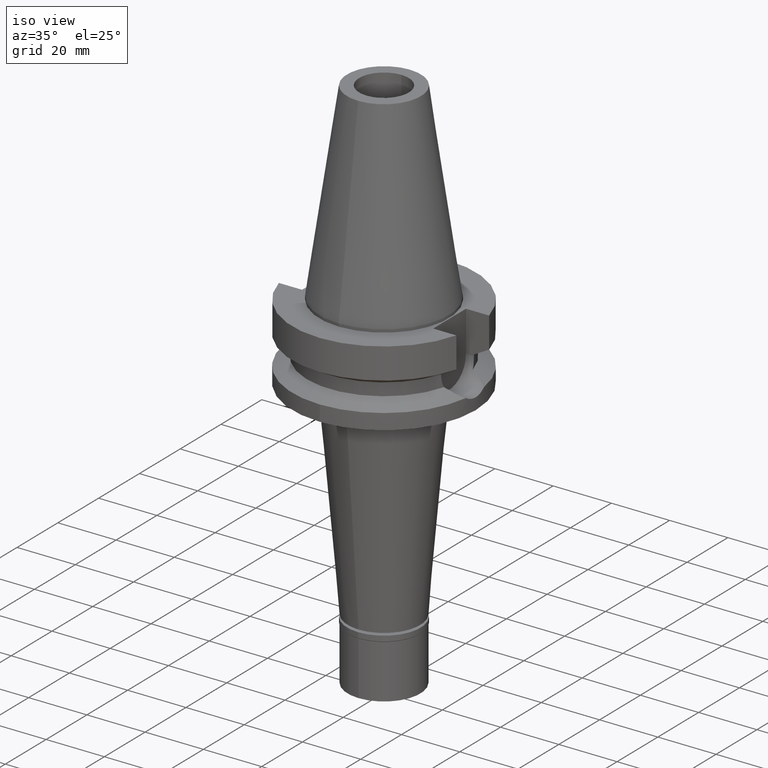
[diagram: clean part render]
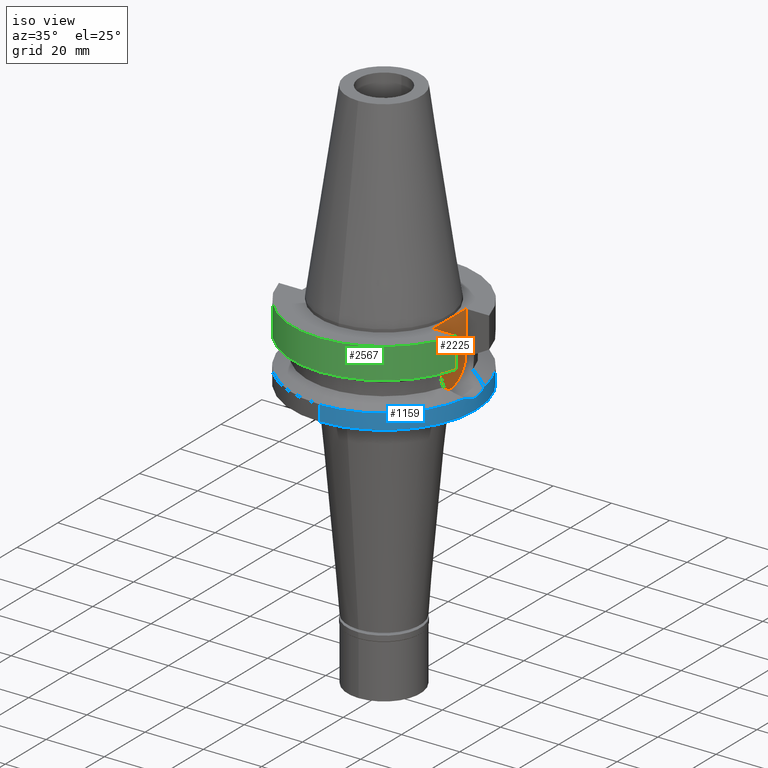
[diagram: same view with three faces highlighted in distinct colors, each labeled with its STEP entity id]
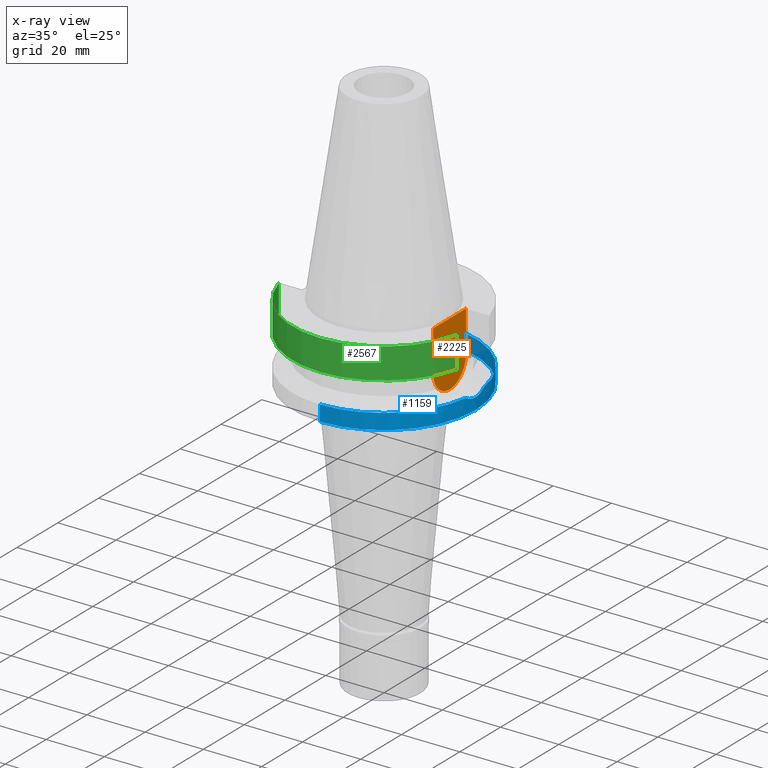
[diagram: x-ray of the same camera — body ghosted, the three highlighted faces saturated]
A machine part, iso view with three faces highlighted in distinct colors.
The next image is the same camera in x-ray (body ghosted, the three faces saturated) — at least one of them is partly hidden behind the body in this view.
Their STEP definitions:

[orange] entity #2225 — the highlighted planar face has unit normal (1, 0, 0).
#107 = LINE ( 'NONE', #351, #630 ) ;
#141 = CARTESIAN_POINT ( 'NONE',  ( 22.50000000000000000, 8.050000000000000711, -1.000000000000000000 ) ) ;
#238 = CARTESIAN_POINT ( 'NONE',  ( 22.50000000000000000, -8.050000000000000711, -1.000000000000000000 ) ) ;
#351 = CARTESIAN_POINT ( 'NONE',  ( 22.50000000000000000, -8.050000000000000711, -14.94999999999999929 ) ) ;
#408 = ORIENTED_EDGE ( 'NONE', *, *, #2429, .F. ) ;
#436 = EDGE_CURVE ( 'NONE', #1615, #731, #2994, .T. ) ;
#503 = FACE_OUTER_BOUND ( 'NONE', #2681, .T. ) ;
#577 = DIRECTION ( 'NONE',  ( 0.0000000000000000000, -1.000000000000000000, 0.0000000000000000000 ) ) ;
#630 = VECTOR ( 'NONE', #1558, 1000.000000000000000 ) ;
#731 = VERTEX_POINT ( 'NONE', #238 ) ;
#871 = CARTESIAN_POINT ( 'NONE',  ( 22.50000000000000000, 8.050000000000000711, -1.000000000000000000 ) ) ;
#1088 = DIRECTION ( 'NONE',  ( 0.0000000000000000000, 0.0000000000000000000, -1.000000000000000000 ) ) ;
#1130 = ORIENTED_EDGE ( 'NONE', *, *, #2523, .F. ) ;
#1133 = CIRCLE ( 'NONE', #2919, 8.050000000000000711 ) ;
#1238 = DIRECTION ( 'NONE',  ( 0.0000000000000000000, 1.000000000000000000, 0.0000000000000000000 ) ) ;
#1334 = CARTESIAN_POINT ( 'NONE',  ( 22.50000000000000000, 8.050000000000000711, -14.94999999999999929 ) ) ;
#1484 = VERTEX_POINT ( 'NONE', #1334 ) ;
#1491 = PLANE ( 'NONE',  #3074 ) ;
#1558 = DIRECTION ( 'NONE',  ( 0.0000000000000000000, 0.0000000000000000000, 1.000000000000000000 ) ) ;
#1615 = VERTEX_POINT ( 'NONE', #141 ) ;
#1713 = CARTESIAN_POINT ( 'NONE',  ( 22.50000000000000000, 0.0000000000000000000, 0.0000000000000000000 ) ) ;
#1827 = CARTESIAN_POINT ( 'NONE',  ( 22.50000000000000000, 8.050000000000000711, -1.000000000000000000 ) ) ;
#2114 = VERTEX_POINT ( 'NONE', #3125 ) ;
#2225 = ADVANCED_FACE ( 'NONE', ( #503 ), #1491, .T. ) ;
#2304 = LINE ( 'NONE', #1827, #2347 ) ;
#2347 = VECTOR ( 'NONE', #1088, 1000.000000000000000 ) ;
#2429 = EDGE_CURVE ( 'NONE', #1484, #2114, #1133, .T. ) ;
#2470 = EDGE_CURVE ( 'NONE', #2114, #731, #107, .T. ) ;
#2471 = DIRECTION ( 'NONE',  ( 0.0000000000000000000, 0.0000000000000000000, -1.000000000000000000 ) ) ;
#2486 = DIRECTION ( 'NONE',  ( 1.000000000000000000, 0.0000000000000000000, 0.0000000000000000000 ) ) ;
#2523 = EDGE_CURVE ( 'NONE', #1615, #1484, #2304, .T. ) ;
#2681 = EDGE_LOOP ( 'NONE', ( #2991, #408, #1130, #2839 ) ) ;
#2696 = CARTESIAN_POINT ( 'NONE',  ( 22.50000000000000000, 0.0000000000000000000, -14.94999999999999929 ) ) ;
#2717 = DIRECTION ( 'NONE',  ( -1.000000000000000000, 0.0000000000000000000, 0.0000000000000000000 ) ) ;
#2839 = ORIENTED_EDGE ( 'NONE', *, *, #436, .T. ) ;
#2871 = VECTOR ( 'NONE', #577, 1000.000000000000000 ) ;
#2919 = AXIS2_PLACEMENT_3D ( 'NONE', #2696, #2717, #2471 ) ;
#2991 = ORIENTED_EDGE ( 'NONE', *, *, #2470, .F. ) ;
#2994 = LINE ( 'NONE', #871, #2871 ) ;
#3074 = AXIS2_PLACEMENT_3D ( 'NONE', #1713, #2486, #1238 ) ;
#3125 = CARTESIAN_POINT ( 'NONE',  ( 22.50000000000000000, -8.050000000000000711, -14.94999999999999929 ) ) ;

[blue] entity #1159 — the highlighted cylindrical surface (partial cylindrical patch) has radius 31.5 mm, axis along (0, 0, -1).
#2 = CARTESIAN_POINT ( 'NONE',  ( 31.43707934141286131, 1.991785373851441276, -22.75083979994500183 ) ) ;
#24 = VECTOR ( 'NONE', #772, 1000.000000000000000 ) ;
#28 = VERTEX_POINT ( 'NONE', #725 ) ;
#100 = DIRECTION ( 'NONE',  ( 0.0000000000000000000, 0.0000000000000000000, -1.000000000000000000 ) ) ;
#192 = CARTESIAN_POINT ( 'NONE',  ( 31.41250465254752555, -2.344685119766516834, -22.65098129005198757 ) ) ;
#212 = CARTESIAN_POINT ( 'NONE',  ( 31.41961539192765329, 2.247536052731850198, -22.67995511559495014 ) ) ;
#224 = CARTESIAN_POINT ( 'NONE',  ( 31.40205153632066271, -2.481143929224092659, -22.60832449609318218 ) ) ;
#249 = CARTESIAN_POINT ( 'NONE',  ( 31.49278356123978639, 0.7711873036931051750, -22.97267690001503126 ) ) ;
#333 = EDGE_CURVE ( 'NONE', #28, #2323, #537, .T. ) ;
#343 = CARTESIAN_POINT ( 'NONE',  ( 0.0000000000000000000, 0.0000000000000000000, -21.63449434733000132 ) ) ;
#391 = CARTESIAN_POINT ( 'NONE',  ( 31.33671814113539611, -3.204274407590857354, -22.33747821317917825 ) ) ;
#416 = DIRECTION ( 'NONE',  ( 0.9898094849552905306, -0.1423979757318985240, 0.0000000000000000000 ) ) ;
#452 = CARTESIAN_POINT ( 'NONE',  ( 31.47113333814916558, 1.356640495981120020, -22.88731189947309730 ) ) ;
#462 = CARTESIAN_POINT ( 'NONE',  ( 31.41023747458205406, -2.374835805099700714, -22.64173436498732883 ) ) ;
#465 = CARTESIAN_POINT ( 'NONE',  ( 31.41697254242930271, 2.284015593820755363, -22.66919255135217526 ) ) ;
#535 = CIRCLE ( 'NONE', #2969, 31.50000000000001421 ) ;
#537 = CIRCLE ( 'NONE', #2815, 31.50000000000000000 ) ;
#559 = EDGE_CURVE ( 'NONE', #1748, #2316, #1329, .T. ) ;
#594 = CARTESIAN_POINT ( 'NONE',  ( 31.23205437646138805, -4.116746326772162234, -21.88196564631180152 ) ) ;
#725 = CARTESIAN_POINT ( 'NONE',  ( 0.0000000000000000000, 31.50000000000000000, -21.63449434733000132 ) ) ;
#729 = CARTESIAN_POINT ( 'NONE',  ( 31.17899877608999759, 4.485536235554000051, -21.63449434733000132 ) ) ;
#750 = CARTESIAN_POINT ( 'NONE',  ( 0.0000000000000000000, -31.50000000000000000, -27.00000000000000000 ) ) ;
#772 = DIRECTION ( 'NONE',  ( 0.0000000000000000000, 1.099151708819000049E-13, -1.000000000000000000 ) ) ;
#797 = B_SPLINE_CURVE_WITH_KNOTS ( 'NONE', 3,
 ( #1796, #594, #2554, #391, #3130, #2116, #946, #224, #2131, #462, #1405, #192, #1420, #2361, #1873 ),
 .UNSPECIFIED., .F., .F.,
 ( 4, 2, 2, 1, 1, 1, 2, 2, 4 ),
 ( 0.0000000000000000000, 0.2499999999999968914, 0.3749999999999954481, 0.4374999999999949485, 0.4687499999999946709, 0.4843749999999942824, 0.4921874999999941713, 0.4999999999999940048, 1.000000000000000000 ),
 .UNSPECIFIED. ) ;
#884 = ORIENTED_EDGE ( 'NONE', *, *, #559, .T. ) ;
#934 = CARTESIAN_POINT ( 'NONE',  ( 0.0000000000000000000, 31.50000000000000000, -27.00000000000000000 ) ) ;
#946 = CARTESIAN_POINT ( 'NONE',  ( 31.38993145521997619, -2.631335983103371579, -22.55874663190619955 ) ) ;
#952 = DIRECTION ( 'NONE',  ( 0.0000000000000000000, 0.0000000000000000000, -1.000000000000000000 ) ) ;
#956 = ORIENTED_EDGE ( 'NONE', *, *, #333, .T. ) ;
#979 = FACE_OUTER_BOUND ( 'NONE', #2967, .T. ) ;
#1125 = ORIENTED_EDGE ( 'NONE', *, *, #1213, .F. ) ;
#1156 = DIRECTION ( 'NONE',  ( 0.0000000000000000000, 0.0000000000000000000, -1.000000000000000000 ) ) ;
#1159 = ADVANCED_FACE ( 'NONE', ( #979 ), #1943, .T. ) ;
#1166 = CARTESIAN_POINT ( 'NONE',  ( 31.41519654756638857, 2.308329250117757248, -22.66195675238899199 ) ) ;
#1204 = CARTESIAN_POINT ( 'NONE',  ( 31.44587474454343123, 1.845305156543991520, -22.78628520787604472 ) ) ;
#1213 = EDGE_CURVE ( 'NONE', #2040, #2323, #1717, .T. ) ;
#1256 = CARTESIAN_POINT ( 'NONE',  ( 31.17899877608999759, -4.485536235554000051, -21.63449434733000132 ) ) ;
#1261 = ORIENTED_EDGE ( 'NONE', *, *, #2767, .T. ) ;
#1310 = EDGE_CURVE ( 'NONE', #28, #2732, #2951, .T. ) ;
#1329 = LINE ( 'NONE', #2293, #2459 ) ;
#1405 = CARTESIAN_POINT ( 'NONE',  ( 31.41183231690602184, -2.353663757154063507, -22.64823938059670283 ) ) ;
#1420 = CARTESIAN_POINT ( 'NONE',  ( 31.47113575803165730, -1.554964651850658353, -22.89006402801799211 ) ) ;
#1424 = CARTESIAN_POINT ( 'NONE',  ( 31.28511117654104368, 3.747948078862596955, -22.12944254114498577 ) ) ;
#1455 = CARTESIAN_POINT ( 'NONE',  ( 0.0000000000000000000, -31.50000000000000000, -21.63449434733000132 ) ) ;
#1457 = CARTESIAN_POINT ( 'NONE',  ( 0.0000000000000000000, 2.135294158992999721E-14, -27.00000000000000000 ) ) ;
#1458 = CARTESIAN_POINT ( 'NONE',  ( 31.50000030227001346, 0.3826090918744618485, -23.00000000000000000 ) ) ;
#1502 = CARTESIAN_POINT ( 'NONE',  ( 0.0000000000000000000, 31.50000000000000000, -21.63449434733000132 ) ) ;
#1543 = EDGE_CURVE ( 'NONE', #2255, #2040, #797, .T. ) ;
#1659 = CARTESIAN_POINT ( 'NONE',  ( 31.46211241186140484, 1.552211430835110706, -22.85146869852459872 ) ) ;
#1674 = DIRECTION ( 'NONE',  ( 0.0000000000000000000, -1.000000000000000000, 0.0000000000000000000 ) ) ;
#1717 = B_SPLINE_CURVE_WITH_KNOTS ( 'NONE', 3,
 ( #2874, #1458, #249, #452, #1659, #1204, #2, #2432, #212, #465, #1166, #2135, #2679, #1424, #729 ),
 .UNSPECIFIED., .F., .F.,
 ( 4, 2, 2, 1, 1, 1, 2, 2, 4 ),
 ( 0.0000000000000000000, 0.2500000000000022204, 0.3750000000000032752, 0.4375000000000036637, 0.4687500000000037192, 0.4843750000000038858, 0.4921875000000038303, 0.5000000000000036637, 1.000000000000000000 ),
 .UNSPECIFIED. ) ;
#1748 = VERTEX_POINT ( 'NONE', #1455 ) ;
#1787 = ORIENTED_EDGE ( 'NONE', *, *, #1310, .F. ) ;
#1796 = CARTESIAN_POINT ( 'NONE',  ( 31.17899877608999759, -4.485536235554000051, -21.63449434733000132 ) ) ;
#1873 = CARTESIAN_POINT ( 'NONE',  ( 31.50000030226999570, 4.154731907849999695E-14, -23.00000138148999795 ) ) ;
#1877 = DIRECTION ( 'NONE',  ( 0.0000000000000000000, 0.0000000000000000000, 1.000000000000000000 ) ) ;
#1894 = DIRECTION ( 'NONE',  ( 0.0000000000000000000, -1.000000000000000000, 0.0000000000000000000 ) ) ;
#1943 = CYLINDRICAL_SURFACE ( 'NONE', #2702, 31.50000000000000000 ) ;
#2017 = CARTESIAN_POINT ( 'NONE',  ( 31.50000030226999570, 4.154731907849999695E-14, -23.00000138148999795 ) ) ;
#2027 = DIRECTION ( 'NONE',  ( 0.0000000000000000000, 1.000000000000000000, 0.0000000000000000000 ) ) ;
#2040 = VERTEX_POINT ( 'NONE', #2017 ) ;
#2042 = CIRCLE ( 'NONE', #2757, 31.50000000000000000 ) ;
#2116 = CARTESIAN_POINT ( 'NONE',  ( 31.37855930987701214, -2.761990093449054218, -22.51192666837500411 ) ) ;
#2131 = CARTESIAN_POINT ( 'NONE',  ( 31.40782472142112525, -2.406637570805186588, -22.63189169567860759 ) ) ;
#2135 = CARTESIAN_POINT ( 'NONE',  ( 31.41418307691938594, 2.322078179474600379, -22.65782554032587370 ) ) ;
#2215 = ORIENTED_EDGE ( 'NONE', *, *, #2876, .T. ) ;
#2235 = CARTESIAN_POINT ( 'NONE',  ( 31.17899877608999759, 4.485536235554000051, -21.63449434733000132 ) ) ;
#2255 = VERTEX_POINT ( 'NONE', #1256 ) ;
#2293 = CARTESIAN_POINT ( 'NONE',  ( 0.0000000000000000000, -31.50000000000000000, -21.63449434733000132 ) ) ;
#2309 = DIRECTION ( 'NONE',  ( 0.0000000000000000000, -1.105773104655000034E-13, -1.000000000000000000 ) ) ;
#2316 = VERTEX_POINT ( 'NONE', #750 ) ;
#2323 = VERTEX_POINT ( 'NONE', #2235 ) ;
#2337 = ORIENTED_EDGE ( 'NONE', *, *, #1543, .F. ) ;
#2361 = CARTESIAN_POINT ( 'NONE',  ( 31.50000030226999925, -0.7652255575721648162, -23.00000000000000000 ) ) ;
#2421 = CARTESIAN_POINT ( 'NONE',  ( 0.0000000000000000000, 2.135294158992999721E-14, 74.35999999999999943 ) ) ;
#2432 = CARTESIAN_POINT ( 'NONE',  ( 31.42563404118526549, 2.162357063322922546, -22.70443063266573347 ) ) ;
#2459 = VECTOR ( 'NONE', #2309, 1000.000000000000000 ) ;
#2554 = CARTESIAN_POINT ( 'NONE',  ( 31.27811616776916281, -3.746663410095390834, -22.08609477296984025 ) ) ;
#2651 = CARTESIAN_POINT ( 'NONE',  ( 0.0000000000000000000, 0.0000000000000000000, -21.63449434733000132 ) ) ;
#2679 = CARTESIAN_POINT ( 'NONE',  ( 31.36324472114687012, 3.008186403774371076, -22.45010119731899678 ) ) ;
#2702 = AXIS2_PLACEMENT_3D ( 'NONE', #2421, #952, #1674 ) ;
#2732 = VERTEX_POINT ( 'NONE', #934 ) ;
#2757 = AXIS2_PLACEMENT_3D ( 'NONE', #1457, #1877, #1894 ) ;
#2767 = EDGE_CURVE ( 'NONE', #2255, #1748, #535, .T. ) ;
#2815 = AXIS2_PLACEMENT_3D ( 'NONE', #343, #100, #2027 ) ;
#2874 = CARTESIAN_POINT ( 'NONE',  ( 31.50000030226999570, 4.154731907849999695E-14, -23.00000138148999795 ) ) ;
#2876 = EDGE_CURVE ( 'NONE', #2316, #2732, #2042, .T. ) ;
#2951 = LINE ( 'NONE', #1502, #24 ) ;
#2967 = EDGE_LOOP ( 'NONE', ( #1261, #884, #2215, #1787, #956, #1125, #2337 ) ) ;
#2969 = AXIS2_PLACEMENT_3D ( 'NONE', #2651, #1156, #416 ) ;
#3130 = CARTESIAN_POINT ( 'NONE',  ( 31.35450367999159127, -3.025551444394471989, -22.41216023106509425 ) ) ;

[green] entity #2567 — the highlighted cylindrical surface (partial cylindrical patch) has radius 31.5 mm, axis along (0, 0, -1).
#138 = EDGE_CURVE ( 'NONE', #1269, #910, #1937, .T. ) ;
#171 = VERTEX_POINT ( 'NONE', #2883 ) ;
#267 = DIRECTION ( 'NONE',  ( 0.0000000000000000000, -1.000000000000000000, 0.0000000000000000000 ) ) ;
#397 = DIRECTION ( 'NONE',  ( 0.0000000000000000000, -1.000000000000000000, 0.0000000000000000000 ) ) ;
#441 = VECTOR ( 'NONE', #1270, 1000.000000000000114 ) ;
#502 = EDGE_LOOP ( 'NONE', ( #2833, #532, #2480, #1032 ) ) ;
#532 = ORIENTED_EDGE ( 'NONE', *, *, #806, .T. ) ;
#606 = DIRECTION ( 'NONE',  ( 0.0000000000000000000, 0.0000000000000000000, -1.000000000000000000 ) ) ;
#741 = DIRECTION ( 'NONE',  ( -1.036821715331017581E-07, -3.922403616114068669E-07, -0.9999999999999177325 ) ) ;
#764 = CARTESIAN_POINT ( 'NONE',  ( 30.45402272279000044, -8.049999999999000622, -11.56550565266999975 ) ) ;
#806 = EDGE_CURVE ( 'NONE', #171, #910, #1884, .T. ) ;
#910 = VERTEX_POINT ( 'NONE', #764 ) ;
#1002 = DIRECTION ( 'NONE',  ( 0.0000000000000000000, -1.000000000000000000, 0.0000000000000000000 ) ) ;
#1032 = ORIENTED_EDGE ( 'NONE', *, *, #3109, .T. ) ;
#1230 = CARTESIAN_POINT ( 'NONE',  ( 0.0000000000000000000, 2.135294158992999721E-14, -1.000000000000000000 ) ) ;
#1269 = VERTEX_POINT ( 'NONE', #1545 ) ;
#1270 = DIRECTION ( 'NONE',  ( 1.806265110085990451E-08, -6.833320314498962301E-08, 0.9999999999999974465 ) ) ;
#1299 = FACE_OUTER_BOUND ( 'NONE', #502, .T. ) ;
#1545 = CARTESIAN_POINT ( 'NONE',  ( 30.45402272279000044, -8.050000000000000711, -1.000000000000000000 ) ) ;
#1884 = CIRCLE ( 'NONE', #2532, 31.50000000000000000 ) ;
#1937 = LINE ( 'NONE', #2897, #2046 ) ;
#1949 = AXIS2_PLACEMENT_3D ( 'NONE', #1230, #606, #1002 ) ;
#1951 = CARTESIAN_POINT ( 'NONE',  ( -30.45402291362999847, -8.049999278023999949, -11.56551215534999955 ) ) ;
#2046 = VECTOR ( 'NONE', #741, 1000.000000000000114 ) ;
#2369 = EDGE_CURVE ( 'NONE', #171, #2827, #2682, .T. ) ;
#2411 = CARTESIAN_POINT ( 'NONE',  ( 0.0000000000000000000, 1.065333950388000029E-14, -11.56550565266999975 ) ) ;
#2480 = ORIENTED_EDGE ( 'NONE', *, *, #138, .F. ) ;
#2500 = CIRCLE ( 'NONE', #1949, 31.50000000000000000 ) ;
#2522 = DIRECTION ( 'NONE',  ( 0.0000000000000000000, 0.0000000000000000000, -1.000000000000000000 ) ) ;
#2532 = AXIS2_PLACEMENT_3D ( 'NONE', #2411, #2697, #267 ) ;
#2567 = ADVANCED_FACE ( 'NONE', ( #1299 ), #3051, .T. ) ;
#2682 = LINE ( 'NONE', #1951, #441 ) ;
#2697 = DIRECTION ( 'NONE',  ( 0.0000000000000000000, 0.0000000000000000000, 1.000000000000000000 ) ) ;
#2785 = CARTESIAN_POINT ( 'NONE',  ( 0.0000000000000000000, 2.135294158992999721E-14, 74.35999999999999943 ) ) ;
#2810 = AXIS2_PLACEMENT_3D ( 'NONE', #2785, #2522, #397 ) ;
#2827 = VERTEX_POINT ( 'NONE', #2840 ) ;
#2833 = ORIENTED_EDGE ( 'NONE', *, *, #2369, .F. ) ;
#2840 = CARTESIAN_POINT ( 'NONE',  ( -30.45402272279000044, -8.050000000000000711, -1.000000000000000000 ) ) ;
#2883 = CARTESIAN_POINT ( 'NONE',  ( -30.45402291362999847, -8.049999278023999949, -11.56551215534999955 ) ) ;
#2897 = CARTESIAN_POINT ( 'NONE',  ( 30.45402272279000044, -8.050000000000000711, -1.000000000000000000 ) ) ;
#3051 = CYLINDRICAL_SURFACE ( 'NONE', #2810, 31.50000000000000000 ) ;
#3109 = EDGE_CURVE ( 'NONE', #1269, #2827, #2500, .T. ) ;